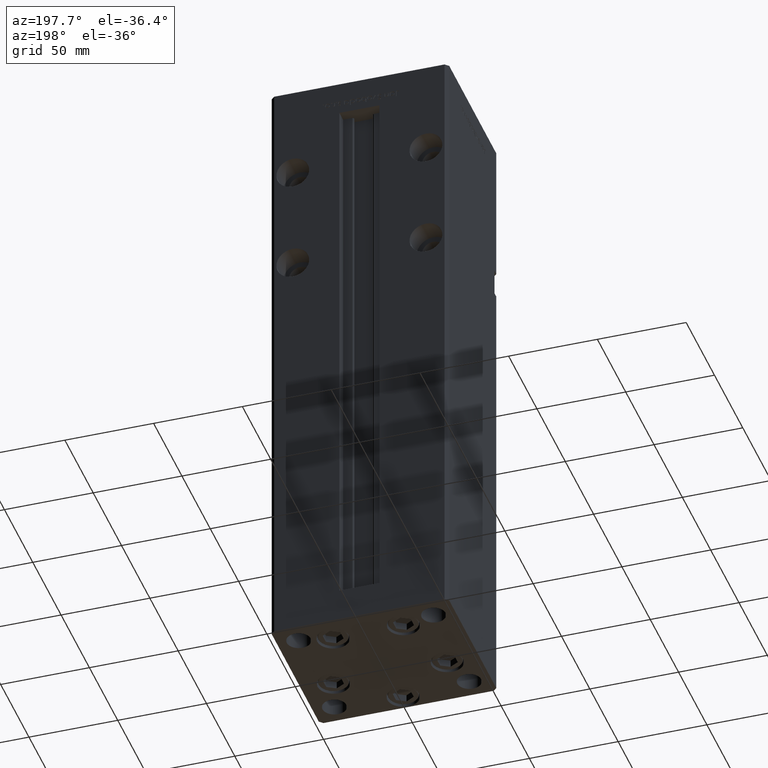
[diagram: clean part render]
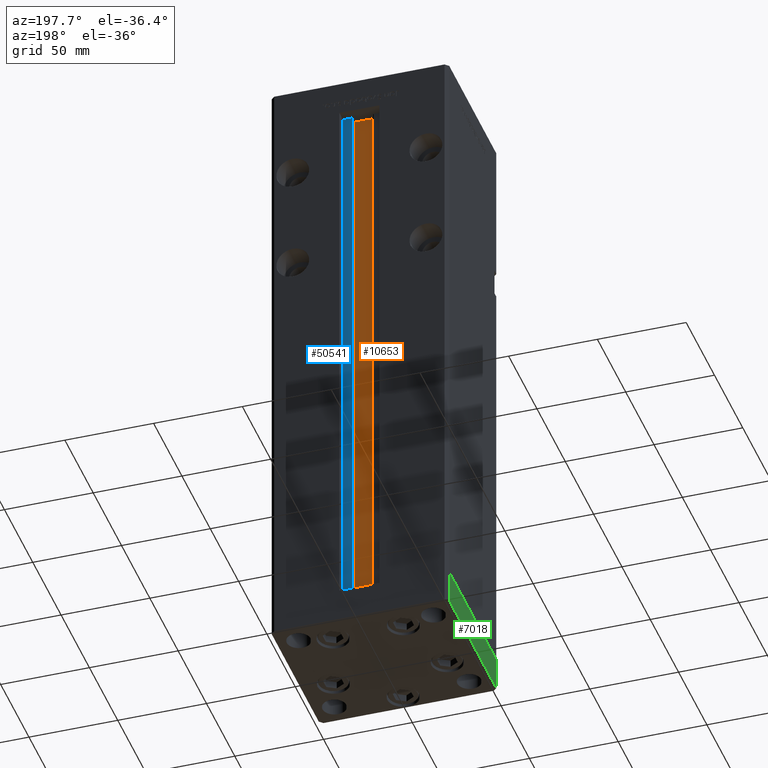
[diagram: same view with three faces highlighted in distinct colors, each labeled with its STEP entity id]
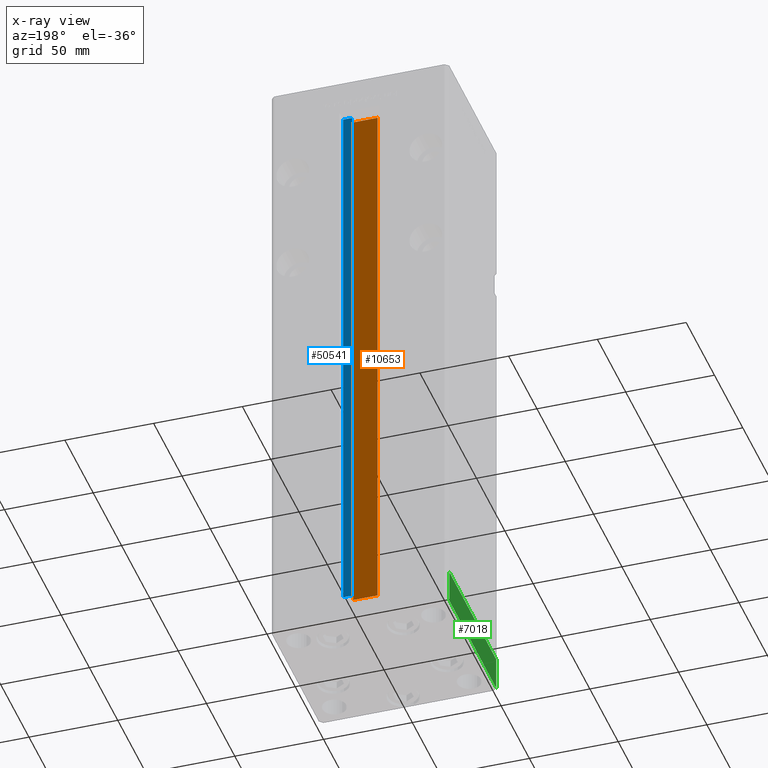
[diagram: x-ray of the same camera — body ghosted, the three highlighted faces saturated]
A machine part, auxiliary view with three faces highlighted in distinct colors.
The next image is the same camera in x-ray (body ghosted, the three faces saturated) — at least one of them is partly hidden behind the body in this view.
Their STEP definitions:

[orange] entity #10653 — the highlighted planar face has unit normal (0, -1, 0).
#2815 = CARTESIAN_POINT ( 'NONE',  ( 6.876153656360465050, 32.99999999999986500, 0.000000000000000000 ) ) ;
#2936 = EDGE_CURVE ( 'NONE', #51892, #19793, #47618, .T. ) ;
#6771 = DIRECTION ( 'NONE',  ( -0.000000000000000000, -0.000000000000000000, 1.000000000000000000 ) ) ;
#6880 = VECTOR ( 'NONE', #39678, 1000.000000000000000 ) ;
#10653 = ADVANCED_FACE ( 'NONE', ( #43135 ), #27012, .F. ) ;
#14076 = ORIENTED_EDGE ( 'NONE', *, *, #52683, .T. ) ;
#14985 = LINE ( 'NONE', #31347, #6880 ) ;
#15383 = CARTESIAN_POINT ( 'NONE',  ( 6.876153656360465050, 32.99999999999986500, 0.000000000000000000 ) ) ;
#15497 = VECTOR ( 'NONE', #16357, 1000.000000000000000 ) ;
#16357 = DIRECTION ( 'NONE',  ( -1.000000000000000000, 0.000000000000000000, 0.000000000000000000 ) ) ;
#19793 = VERTEX_POINT ( 'NONE', #28258 ) ;
#21726 = EDGE_CURVE ( 'NONE', #24820, #51892, #24170, .T. ) ;
#22216 = DIRECTION ( 'NONE',  ( 0.000000000000000000, 0.000000000000000000, -1.000000000000000000 ) ) ;
#23028 = VERTEX_POINT ( 'NONE', #51218 ) ;
#24170 = LINE ( 'NONE', #35741, #27438 ) ;
#24820 = VERTEX_POINT ( 'NONE', #45497 ) ;
#27012 = PLANE ( 'NONE',  #29727 ) ;
#27438 = VECTOR ( 'NONE', #36518, 1000.000000000000000 ) ;
#28258 = CARTESIAN_POINT ( 'NONE',  ( 6.876153656360465050, 32.99999999999986500, 318.5000000000000000 ) ) ;
#29727 = AXIS2_PLACEMENT_3D ( 'NONE', #2815, #31303, #22216 ) ;
#31303 = DIRECTION ( 'NONE',  ( 0.000000000000000000, -1.000000000000000000, -0.000000000000000000 ) ) ;
#31347 = CARTESIAN_POINT ( 'NONE',  ( -6.876153656360465050, 32.99999999999986500, 0.000000000000000000 ) ) ;
#35741 = CARTESIAN_POINT ( 'NONE',  ( 6.876153656360465050, 32.99999999999986500, 0.000000000000000000 ) ) ;
#36518 = DIRECTION ( 'NONE',  ( 1.000000000000000000, -0.000000000000000000, -0.000000000000000000 ) ) ;
#37289 = LINE ( 'NONE', #53163, #15497 ) ;
#37788 = ORIENTED_EDGE ( 'NONE', *, *, #51664, .F. ) ;
#39393 = ORIENTED_EDGE ( 'NONE', *, *, #2936, .F. ) ;
#39678 = DIRECTION ( 'NONE',  ( -0.000000000000000000, -0.000000000000000000, 1.000000000000000000 ) ) ;
#41619 = VECTOR ( 'NONE', #6771, 1000.000000000000000 ) ;
#41860 = CARTESIAN_POINT ( 'NONE',  ( 6.876153656360465050, 32.99999999999986500, 0.000000000000000000 ) ) ;
#43135 = FACE_OUTER_BOUND ( 'NONE', #49260, .T. ) ;
#44940 = ORIENTED_EDGE ( 'NONE', *, *, #21726, .F. ) ;
#45497 = CARTESIAN_POINT ( 'NONE',  ( -6.876153656360465050, 32.99999999999986500, 0.000000000000000000 ) ) ;
#47618 = LINE ( 'NONE', #15383, #41619 ) ;
#49260 = EDGE_LOOP ( 'NONE', ( #39393, #44940, #14076, #37788 ) ) ;
#51218 = CARTESIAN_POINT ( 'NONE',  ( -6.876153656360465050, 32.99999999999986500, 318.5000000000000000 ) ) ;
#51664 = EDGE_CURVE ( 'NONE', #19793, #23028, #37289, .T. ) ;
#51892 = VERTEX_POINT ( 'NONE', #41860 ) ;
#52683 = EDGE_CURVE ( 'NONE', #24820, #23028, #14985, .T. ) ;
#53163 = CARTESIAN_POINT ( 'NONE',  ( 0.000000000000000000, 32.99999999999986500, 318.5000000000000000 ) ) ;

[blue] entity #50541 — the highlighted planar face has unit normal (0, -1, 0).
#251 = FACE_OUTER_BOUND ( 'NONE', #32946, .T. ) ;
#490 = DIRECTION ( 'NONE',  ( -1.000000000000000000, 0.000000000000000000, 0.000000000000000000 ) ) ;
#2660 = LINE ( 'NONE', #18808, #16736 ) ;
#2950 = EDGE_CURVE ( 'NONE', #18233, #26368, #23174, .T. ) ;
#3275 = EDGE_CURVE ( 'NONE', #6611, #39995, #2660, .T. ) ;
#3404 = ORIENTED_EDGE ( 'NONE', *, *, #3275, .F. ) ;
#3963 = LINE ( 'NONE', #32201, #25566 ) ;
#5510 = VECTOR ( 'NONE', #12054, 1000.000000000000000 ) ;
#6496 = CARTESIAN_POINT ( 'NONE',  ( 6.183333333333996151, 37.00000000000000000, 0.000000000000000000 ) ) ;
#6611 = VERTEX_POINT ( 'NONE', #31437 ) ;
#8466 = ORIENTED_EDGE ( 'NONE', *, *, #41859, .F. ) ;
#9438 = AXIS2_PLACEMENT_3D ( 'NONE', #11853, #29007, #28215 ) ;
#11529 = CARTESIAN_POINT ( 'NONE',  ( 6.183333333333996151, 37.00000000000000000, 0.000000000000000000 ) ) ;
#11853 = CARTESIAN_POINT ( 'NONE',  ( 6.183333333333996151, 37.00000000000000000, 0.000000000000000000 ) ) ;
#12054 = DIRECTION ( 'NONE',  ( 1.000000000000000000, 0.000000000000000000, 0.000000000000000000 ) ) ;
#16642 = CARTESIAN_POINT ( 'NONE',  ( 6.183333333333996151, 37.00000000000000000, 318.5000000000000000 ) ) ;
#16736 = VECTOR ( 'NONE', #35183, 1000.000000000000000 ) ;
#18233 = VERTEX_POINT ( 'NONE', #45904 ) ;
#18468 = ORIENTED_EDGE ( 'NONE', *, *, #2950, .T. ) ;
#18808 = CARTESIAN_POINT ( 'NONE',  ( 11.24999999999999645, 37.00000000000000000, 0.000000000000000000 ) ) ;
#20100 = LINE ( 'NONE', #11529, #5510 ) ;
#23174 = LINE ( 'NONE', #6496, #51906 ) ;
#25566 = VECTOR ( 'NONE', #490, 1000.000000000000000 ) ;
#26368 = VERTEX_POINT ( 'NONE', #16642 ) ;
#28215 = DIRECTION ( 'NONE',  ( 0.000000000000000000, -0.000000000000000000, -1.000000000000000000 ) ) ;
#29007 = DIRECTION ( 'NONE',  ( 0.000000000000000000, -1.000000000000000000, 0.000000000000000000 ) ) ;
#30870 = ORIENTED_EDGE ( 'NONE', *, *, #31706, .F. ) ;
#31437 = CARTESIAN_POINT ( 'NONE',  ( 11.24999999999999645, 37.00000000000000000, 0.000000000000000000 ) ) ;
#31706 = EDGE_CURVE ( 'NONE', #18233, #6611, #20100, .T. ) ;
#32201 = CARTESIAN_POINT ( 'NONE',  ( 0.000000000000000000, 37.00000000000000000, 318.5000000000000000 ) ) ;
#32946 = EDGE_LOOP ( 'NONE', ( #3404, #30870, #18468, #8466 ) ) ;
#35183 = DIRECTION ( 'NONE',  ( -0.000000000000000000, -0.000000000000000000, 1.000000000000000000 ) ) ;
#35508 = DIRECTION ( 'NONE',  ( -0.000000000000000000, -0.000000000000000000, 1.000000000000000000 ) ) ;
#39978 = CARTESIAN_POINT ( 'NONE',  ( 11.24999999999999645, 37.00000000000000000, 318.5000000000000000 ) ) ;
#39995 = VERTEX_POINT ( 'NONE', #39978 ) ;
#41859 = EDGE_CURVE ( 'NONE', #39995, #26368, #3963, .T. ) ;
#44608 = PLANE ( 'NONE',  #9438 ) ;
#45904 = CARTESIAN_POINT ( 'NONE',  ( 6.183333333333996151, 37.00000000000000000, 0.000000000000000000 ) ) ;
#50541 = ADVANCED_FACE ( 'NONE', ( #251 ), #44608, .F. ) ;
#51906 = VECTOR ( 'NONE', #35508, 1000.000000000000000 ) ;

[green] entity #7018 — the highlighted planar face has unit normal (-1, -0, 0).
#816 = CARTESIAN_POINT ( 'NONE',  ( 49.99999999999992184, 41.49999999999998579, -19.00000000000000000 ) ) ;
#2776 = ORIENTED_EDGE ( 'NONE', *, *, #24334, .F. ) ;
#3720 = VECTOR ( 'NONE', #34642, 1000.000000000000000 ) ;
#6175 = VERTEX_POINT ( 'NONE', #12035 ) ;
#7018 = ADVANCED_FACE ( 'NONE', ( #24114 ), #12294, .T. ) ;
#12035 = CARTESIAN_POINT ( 'NONE',  ( 49.99999999999992184, 41.49999999999998579, -19.00000000000000000 ) ) ;
#12294 = PLANE ( 'NONE',  #45925 ) ;
#14496 = DIRECTION ( 'NONE',  ( 0.000000000000000000, 0.000000000000000000, 1.000000000000000000 ) ) ;
#14804 = DIRECTION ( 'NONE',  ( -1.003213576468515193E-15, 1.000000000000000000, 0.000000000000000000 ) ) ;
#16059 = DIRECTION ( 'NONE',  ( 1.000000000000000000, 1.003213576468515193E-15, -0.000000000000000000 ) ) ;
#19585 = DIRECTION ( 'NONE',  ( -1.003213576468515193E-15, 1.000000000000000000, 0.000000000000000000 ) ) ;
#23558 = CARTESIAN_POINT ( 'NONE',  ( 50.00000000000000000, -41.49999999999999289, -19.00000000000000000 ) ) ;
#24114 = FACE_OUTER_BOUND ( 'NONE', #39130, .T. ) ;
#24334 = EDGE_CURVE ( 'NONE', #25588, #51568, #47523, .T. ) ;
#24365 = VECTOR ( 'NONE', #19585, 1000.000000000000000 ) ;
#25159 = EDGE_CURVE ( 'NONE', #6175, #42278, #42441, .T. ) ;
#25588 = VERTEX_POINT ( 'NONE', #23558 ) ;
#25607 = ORIENTED_EDGE ( 'NONE', *, *, #25159, .T. ) ;
#25616 = CARTESIAN_POINT ( 'NONE',  ( 49.99999999999992184, 41.49999999999998579, 0.000000000000000000 ) ) ;
#26096 = LINE ( 'NONE', #26622, #36702 ) ;
#26326 = CARTESIAN_POINT ( 'NONE',  ( 50.00000000000000000, -41.49999999999999289, 0.000000000000000000 ) ) ;
#26622 = CARTESIAN_POINT ( 'NONE',  ( 50.00000000000000000, -41.49999999999999289, -19.00000000000000000 ) ) ;
#31662 = CARTESIAN_POINT ( 'NONE',  ( 50.00000000000000000, -41.49999999999999289, 0.000000000000000000 ) ) ;
#31692 = EDGE_CURVE ( 'NONE', #51568, #42278, #39449, .T. ) ;
#34642 = DIRECTION ( 'NONE',  ( 0.000000000000000000, 0.000000000000000000, 1.000000000000000000 ) ) ;
#36702 = VECTOR ( 'NONE', #14804, 1000.000000000000000 ) ;
#39130 = EDGE_LOOP ( 'NONE', ( #48673, #2776, #52896, #25607 ) ) ;
#39449 = LINE ( 'NONE', #31662, #24365 ) ;
#40585 = VECTOR ( 'NONE', #14496, 1000.000000000000000 ) ;
#41016 = DIRECTION ( 'NONE',  ( -1.003213576468515193E-15, 1.000000000000000000, 0.000000000000000000 ) ) ;
#42278 = VERTEX_POINT ( 'NONE', #25616 ) ;
#42441 = LINE ( 'NONE', #816, #3720 ) ;
#45488 = EDGE_CURVE ( 'NONE', #25588, #6175, #26096, .T. ) ;
#45925 = AXIS2_PLACEMENT_3D ( 'NONE', #48839, #16059, #41016 ) ;
#47265 = CARTESIAN_POINT ( 'NONE',  ( 50.00000000000000000, -41.49999999999999289, -19.00000000000000000 ) ) ;
#47523 = LINE ( 'NONE', #47265, #40585 ) ;
#48673 = ORIENTED_EDGE ( 'NONE', *, *, #31692, .F. ) ;
#48839 = CARTESIAN_POINT ( 'NONE',  ( 50.00000000000000000, -41.49999999999999289, -19.00000000000000000 ) ) ;
#51568 = VERTEX_POINT ( 'NONE', #26326 ) ;
#52896 = ORIENTED_EDGE ( 'NONE', *, *, #45488, .T. ) ;